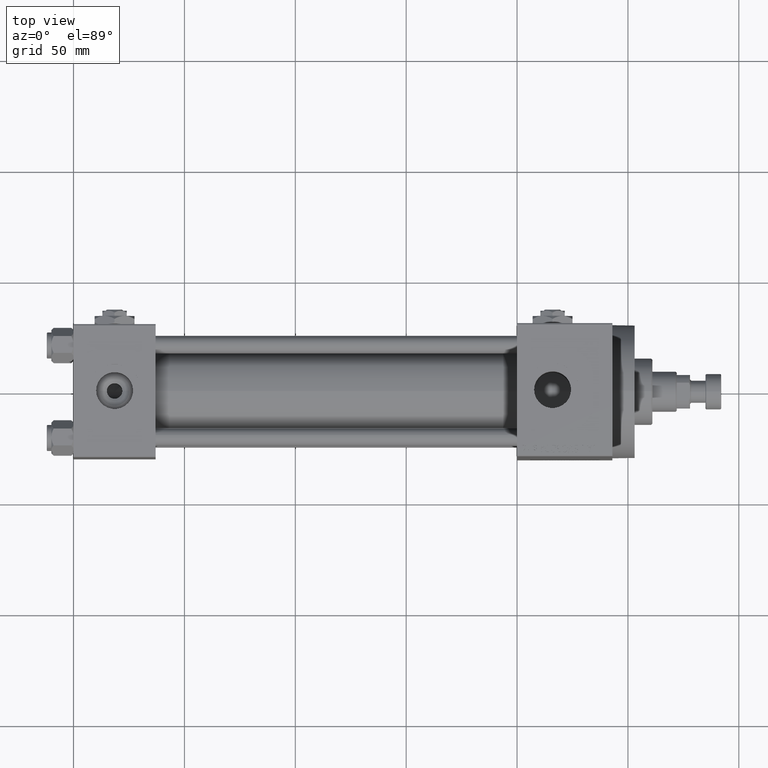
[diagram: clean part render]
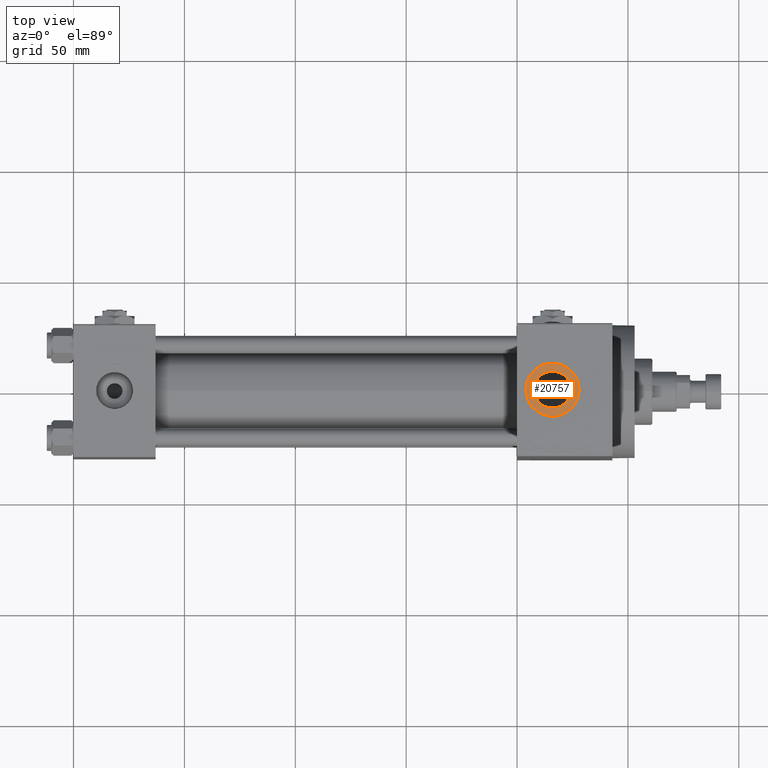
[diagram: same view with one face highlighted and labeled with its STEP entity id]
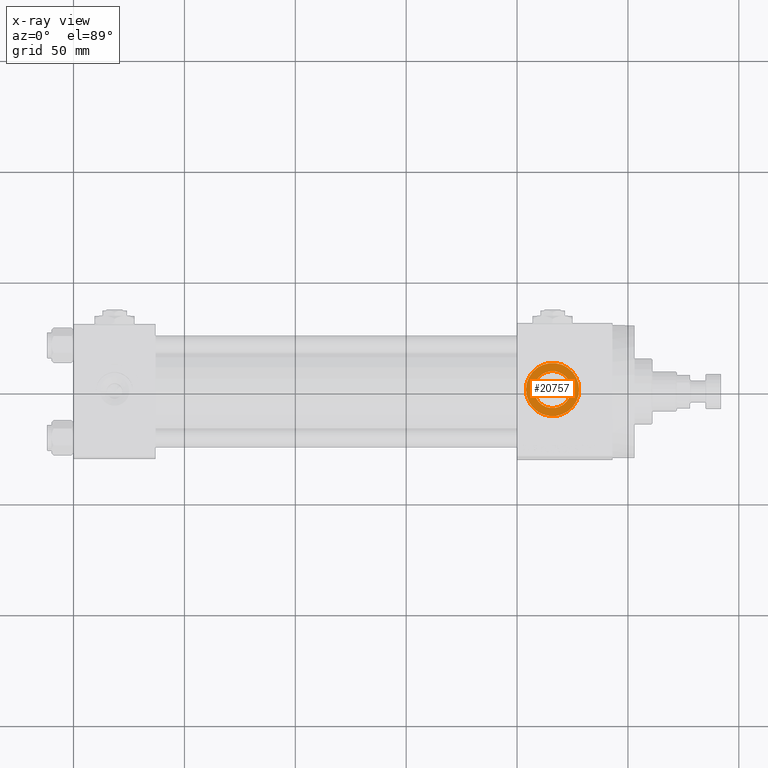
[diagram: x-ray of the same camera — body ghosted, the highlighted face saturated]
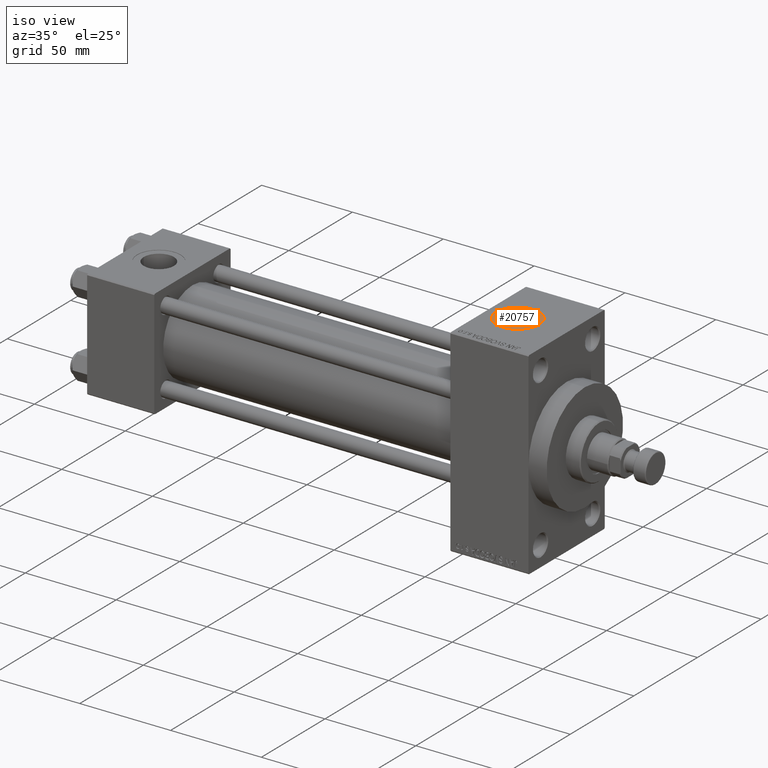
[diagram: same view with one face highlighted and labeled with its STEP entity id]
A machine part, top view. The second image highlights one B-rep face of the part: STEP entity #20757.
The next image is the same camera in x-ray: the body ghosted, the highlighted face saturated — about 0% of this face is hidden behind the body in this view.
A second angle (iso view) of the same face is appended — the face is thin or edge-on in the first view.
In plain terms, the highlighted planar face has unit normal (0, 0, 1).
Its self-contained STEP definition (entity closure, byte-faithful):
#12 = VERTEX_POINT ( 'NONE', #36623 ) ;
#1439 = VERTEX_POINT ( 'NONE', #11659 ) ;
#2512 = FACE_OUTER_BOUND ( 'NONE', #42946, .T. ) ;
#5718 = DIRECTION ( 'NONE',  ( -0.000000000000000000, -0.000000000000000000, -1.000000000000000000 ) ) ;
#6958 = EDGE_LOOP ( 'NONE', ( #40129, #35395 ) ) ;
#7902 = EDGE_CURVE ( 'NONE', #12, #23177, #41843, .T. ) ;
#11659 = CARTESIAN_POINT ( 'NONE',  ( 224.3300000000000409, 7.322959413072145713E-15, 54.29999999999999716 ) ) ;
#11726 = CIRCLE ( 'NONE', #46257, 12.00000000000001066 ) ;
#15725 = CIRCLE ( 'NONE', #40567, 8.330000000000003624 ) ;
#18518 = CARTESIAN_POINT ( 'NONE',  ( 216.0000000000000284, 6.302828629382400162E-15, 54.29999999999999716 ) ) ;
#19513 = DIRECTION ( 'NONE',  ( -0.000000000000000000, -0.000000000000000000, -1.000000000000000000 ) ) ;
#19652 = AXIS2_PLACEMENT_3D ( 'NONE', #32941, #29162, #40217 ) ;
#20624 = PLANE ( 'NONE',  #19652 ) ;
#20757 = ADVANCED_FACE ( 'NONE', ( #35973, #2512 ), #20624, .T. ) ;
#20808 = CARTESIAN_POINT ( 'NONE',  ( 216.0000000000000284, 6.302828629382400162E-15, 54.29999999999999716 ) ) ;
#21034 = EDGE_CURVE ( 'NONE', #1439, #35534, #15725, .T. ) ;
#22457 = EDGE_CURVE ( 'NONE', #23177, #12, #11726, .T. ) ;
#23177 = VERTEX_POINT ( 'NONE', #48324 ) ;
#24980 = DIRECTION ( 'NONE',  ( 0.000000000000000000, 0.000000000000000000, 1.000000000000000000 ) ) ;
#25372 = CIRCLE ( 'NONE', #31800, 8.330000000000003624 ) ;
#28757 = CARTESIAN_POINT ( 'NONE',  ( 216.0000000000000284, 6.302828629382399373E-15, 54.29999999999999716 ) ) ;
#29162 = DIRECTION ( 'NONE',  ( 0.000000000000000000, 0.000000000000000000, 1.000000000000000000 ) ) ;
#31800 = AXIS2_PLACEMENT_3D ( 'NONE', #18518, #19513, #46408 ) ;
#32883 = DIRECTION ( 'NONE',  ( 1.000000000000000000, 0.000000000000000000, 0.000000000000000000 ) ) ;
#32941 = CARTESIAN_POINT ( 'NONE',  ( 216.0000000000000284, 6.302828629382399373E-15, 54.29999999999999716 ) ) ;
#35395 = ORIENTED_EDGE ( 'NONE', *, *, #21034, .T. ) ;
#35534 = VERTEX_POINT ( 'NONE', #48751 ) ;
#35973 = FACE_BOUND ( 'NONE', #6958, .T. ) ;
#36623 = CARTESIAN_POINT ( 'NONE',  ( 228.0000000000000284, 6.302828629382399373E-15, 54.29999999999999716 ) ) ;
#40129 = ORIENTED_EDGE ( 'NONE', *, *, #48216, .T. ) ;
#40217 = DIRECTION ( 'NONE',  ( 1.000000000000000000, 0.000000000000000000, -0.000000000000000000 ) ) ;
#40307 = DIRECTION ( 'NONE',  ( 1.000000000000000000, 0.000000000000000000, 0.000000000000000000 ) ) ;
#40567 = AXIS2_PLACEMENT_3D ( 'NONE', #20808, #5718, #32883 ) ;
#40879 = ORIENTED_EDGE ( 'NONE', *, *, #22457, .T. ) ;
#41843 = CIRCLE ( 'NONE', #43411, 12.00000000000001066 ) ;
#42752 = CARTESIAN_POINT ( 'NONE',  ( 216.0000000000000284, 6.302828629382399373E-15, 54.29999999999999716 ) ) ;
#42946 = EDGE_LOOP ( 'NONE', ( #46367, #40879 ) ) ;
#43245 = DIRECTION ( 'NONE',  ( 1.000000000000000000, 0.000000000000000000, 0.000000000000000000 ) ) ;
#43411 = AXIS2_PLACEMENT_3D ( 'NONE', #28757, #24980, #40307 ) ;
#46257 = AXIS2_PLACEMENT_3D ( 'NONE', #42752, #47014, #43245 ) ;
#46367 = ORIENTED_EDGE ( 'NONE', *, *, #7902, .T. ) ;
#46408 = DIRECTION ( 'NONE',  ( 1.000000000000000000, 0.000000000000000000, 0.000000000000000000 ) ) ;
#47014 = DIRECTION ( 'NONE',  ( 0.000000000000000000, 0.000000000000000000, 1.000000000000000000 ) ) ;
#48216 = EDGE_CURVE ( 'NONE', #35534, #1439, #25372, .T. ) ;
#48324 = CARTESIAN_POINT ( 'NONE',  ( 204.0000000000000284, 7.772404788359223517E-15, 54.29999999999999716 ) ) ;
#48751 = CARTESIAN_POINT ( 'NONE',  ( 207.6700000000000159, 6.302828629382400162E-15, 54.29999999999999716 ) ) ;